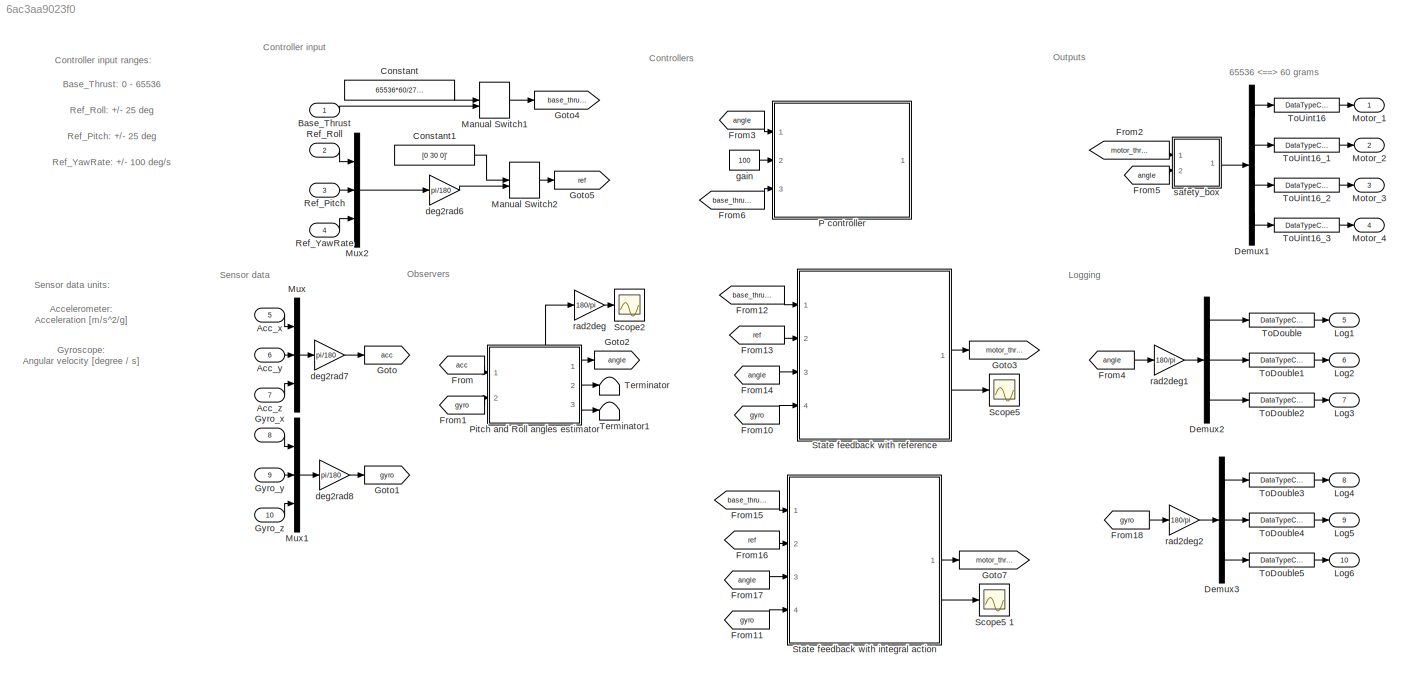
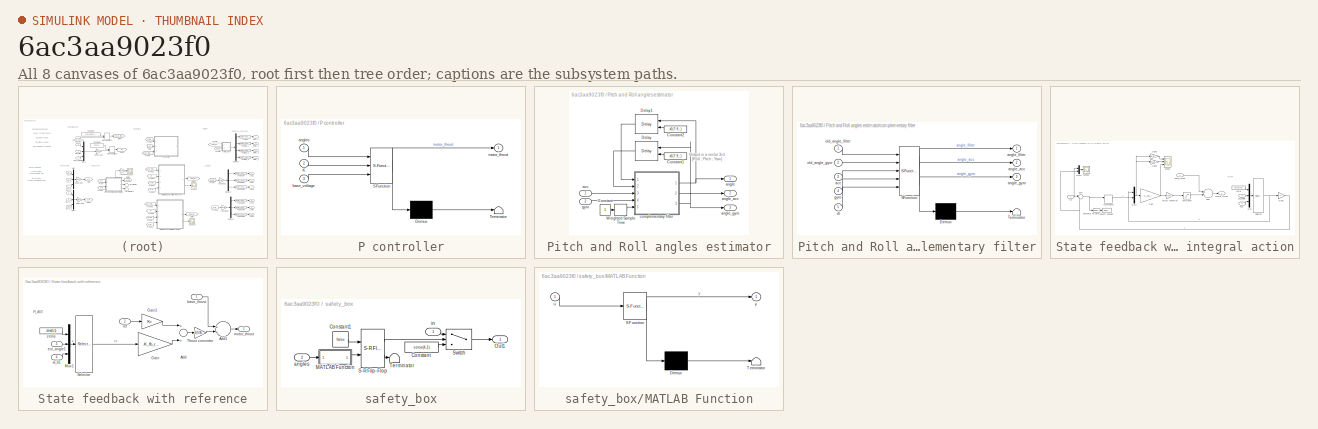
[diagram: thumbnail index - all 8 canvases of the model, root first then tree order]
MODEL slx_6ac3aa9023f0
KIND model
CONFIG AbsTol = auto
CONFIG EnableMultiTasking = off
CONFIG FixedStep = 0.01
CONFIG MaxStep = auto
CONFIG MinStep = auto
CONFIG RelTol = 1e-3
CONFIG SampleTimeConstraint = Unconstrained
CONFIG Solver = FixedStepDiscrete
CONFIG SolverName = FixedStepDiscrete
CONFIG StartTime = 0.0
CONFIG StopTime = 25
BLOCK [Inport] Acc_x
  IconDisplay = Port number
  OutDataTypeStr = double
  Port = 5
  PortDimensions = 1
  SignalType = real
  VarSizeSig = No
BLOCK [Inport] Acc_y
  IconDisplay = Port number
  OutDataTypeStr = double
  Port = 6
  PortDimensions = 1
  SignalType = real
  VarSizeSig = No
BLOCK [Inport] Acc_z
  IconDisplay = Port number
  OutDataTypeStr = double
  Port = 7
  PortDimensions = 1
  SignalType = real
  VarSizeSig = No
BLOCK [Inport] Base_Thrust
  IconDisplay = Port number
  OutDataTypeStr = double
  SignalType = real
BLOCK [Constant] Constant
  Value = 65536*60/27/4*0.4
BLOCK [Constant] Constant1
  Value = [0 30 0]'
BLOCK [Demux] Demux1
  DisplayOption = bar
  Ports = [1, 4]
BLOCK [Demux] Demux2
  DisplayOption = bar
  Outputs = 3
  Ports = [1, 3]
BLOCK [Demux] Demux3
  DisplayOption = bar
  Outputs = 3
  Ports = [1, 3]
BLOCK [From] From
  GotoTag = acc
BLOCK [From] From1
  GotoTag = gyro
BLOCK [From] From10
  Commented = on
  GotoTag = gyro
BLOCK [From] From11
  GotoTag = gyro
BLOCK [From] From12
  Commented = on
  GotoTag = base_thrust
BLOCK [From] From13
  Commented = on
  GotoTag = ref
BLOCK [From] From14
  Commented = on
  GotoTag = angle
BLOCK [From] From15
  GotoTag = base_thrust
BLOCK [From] From16
  GotoTag = ref
BLOCK [From] From17
  GotoTag = angle
BLOCK [From] From18
  GotoTag = gyro
BLOCK [From] From2
  GotoTag = motor_thrust
BLOCK [From] From3
  Commented = on
  GotoTag = angle
BLOCK [From] From4
  GotoTag = angle
BLOCK [From] From5
  GotoTag = angle
BLOCK [From] From6
  Commented = on
  GotoTag = base_thrust
BLOCK [Goto] Goto
  GotoTag = acc
BLOCK [Goto] Goto1
  GotoTag = gyro
BLOCK [Goto] Goto2
  GotoTag = angle
BLOCK [Goto] Goto3
  Commented = on
  GotoTag = motor_thrust
BLOCK [Goto] Goto4
  GotoTag = base_thrust
BLOCK [Goto] Goto5
  GotoTag = ref
BLOCK [Goto] Goto7
  GotoTag = motor_thrust
BLOCK [Inport] Gyro_x
  IconDisplay = Port number
  OutDataTypeStr = double
  Port = 8
  PortDimensions = 1
  SignalType = real
  VarSizeSig = No
BLOCK [Inport] Gyro_y
  IconDisplay = Port number
  OutDataTypeStr = double
  Port = 9
  PortDimensions = 1
  SignalType = real
  VarSizeSig = No
BLOCK [Inport] Gyro_z
  IconDisplay = Port number
  OutDataTypeStr = double
  Port = 10
  PortDimensions = 1
  SignalType = real
  VarSizeSig = No
BLOCK [Outport] Log1
  IconDisplay = Port number
  OutDataTypeStr = double
  Port = 5
BLOCK [Outport] Log2
  IconDisplay = Port number
  OutDataTypeStr = double
  Port = 6
BLOCK [Outport] Log3
  IconDisplay = Port number
  OutDataTypeStr = double
  Port = 7
BLOCK [Outport] Log4
  IconDisplay = Port number
  OutDataTypeStr = double
  Port = 8
BLOCK [Outport] Log5
  IconDisplay = Port number
  OutDataTypeStr = double
  Port = 9
BLOCK [Outport] Log6
  IconDisplay = Port number
  OutDataTypeStr = double
  Port = 10
BLOCK [ManualSwitch] Manual Switch1
  CurrentSetting = 0
BLOCK [ManualSwitch] Manual Switch2
  CurrentSetting = 0
BLOCK [Outport] Motor_1
  IconDisplay = Port number
  LockScale = on
  OutDataTypeStr = uint16
BLOCK [Outport] Motor_2
  IconDisplay = Port number
  LockScale = on
  OutDataTypeStr = uint16
  Port = 2
BLOCK [Outport] Motor_3
  IconDisplay = Port number
  LockScale = on
  OutDataTypeStr = uint16
  Port = 3
BLOCK [Outport] Motor_4
  IconDisplay = Port number
  LockScale = on
  OutDataTypeStr = uint16
  Port = 4
BLOCK [Mux] Mux
  DisplayOption = bar
  Inputs = 3
  Ports = [3, 1]
BLOCK [Mux] Mux1
  DisplayOption = bar
  Inputs = 3
  Ports = [3, 1]
BLOCK [Mux] Mux2
  DisplayOption = bar
  Inputs = 3
  Ports = [3, 1]
BLOCK [SubSystem] P controller
  Commented = on
  ErrorFcn = Stateflow.Translate.translate
  PermitHierarchicalResolution = ExplicitOnly
  Ports = [3, 1]
  RequestExecContextInheritance = off
  SFBlockType = MATLAB Function
  TreatAsAtomicUnit = on
BLOCK [Demux] P controller/ Demux 
  Outputs = 1
  Ports = [1, 1]
BLOCK [S-Function] P controller/ SFunction 
  EnableBusSupport = on
  FunctionName = sf_sfun
  PortCounts = [3 2]
  Ports = [3, 2]
  SFcnIsStateOwnerBlock = off
  SFunctionDeploymentMode = off
  Tag = Stateflow S-Function crazyflie 1
BLOCK [Terminator] P controller/ Terminator 
BLOCK [Inport] P controller/K
  IconDisplay = Port number
  Port = 2
BLOCK [Inport] P controller/angles
  IconDisplay = Port number
BLOCK [Inport] P controller/base_voltage
  IconDisplay = Port number
  Port = 3
BLOCK [Outport] P controller/motor_thrust
  IconDisplay = Port number
BLOCK [SubSystem] Pitch and Roll angles estimator
  Ports = [2, 3]
  RequestExecContextInheritance = off
BLOCK [Constant] Pitch and Roll angles estimator/Constant
BLOCK [Constant] Pitch and Roll angles estimator/Constant1
  Value = x0(7:9,:)
BLOCK [Constant] Pitch and Roll angles estimator/Constant2
  Value = x0(7:9,:)
BLOCK [Delay] Pitch and Roll angles estimator/Delay
  DelayLength = 1
  InitialCondition = rad2deg(x0(7:9,:))
  InitialConditionSource = Input port
  InputPortMap = u0,p4
  Ports = [2, 1]
BLOCK [Delay] Pitch and Roll angles estimator/Delay1
  DelayLength = 1
  InitialCondition = rad2deg(x0(7:9,:))
  InitialConditionSource = Input port
  InputPortMap = u0,p4
  Ports = [2, 1]
BLOCK [SampleTimeMath] Pitch and Roll angles estimator/Weighted Sample Time
  TsampMathOp = Ts Only
BLOCK [Inport] Pitch and Roll angles estimator/acc
  IconDisplay = Port number
BLOCK [Outport] Pitch and Roll angles estimator/angle
  IconDisplay = Port number
BLOCK [Outport] Pitch and Roll angles estimator/angle_acc
  IconDisplay = Port number
  Port = 2
BLOCK [Outport] Pitch and Roll angles estimator/angle_gyro
  IconDisplay = Port number
  Port = 3
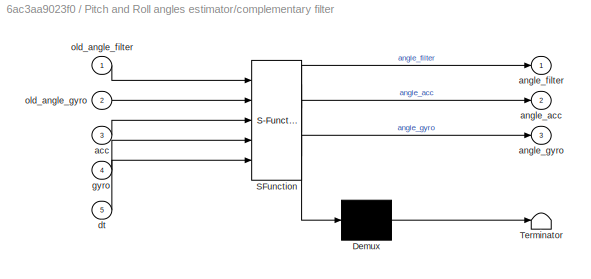
BLOCK [SubSystem] Pitch and Roll angles estimator/complementary filter
  ErrorFcn = Stateflow.Translate.translate
  PermitHierarchicalResolution = ExplicitOnly
  Ports = [5, 3]
  RequestExecContextInheritance = off
  SFBlockType = MATLAB Function
  TreatAsAtomicUnit = on
BLOCK [Demux] Pitch and Roll angles estimator/complementary filter/ Demux 
  Outputs = 1
  Ports = [1, 1]
BLOCK [S-Function] Pitch and Roll angles estimator/complementary filter/ SFunction 
  EnableBusSupport = on
  FunctionName = sf_sfun
  PortCounts = [5 4]
  Ports = [5, 4]
  SFcnIsStateOwnerBlock = off
  SFunctionDeploymentMode = off
  Tag = Stateflow S-Function crazyflie 2
BLOCK [Terminator] Pitch and Roll angles estimator/complementary filter/ Terminator 
BLOCK [Inport] Pitch and Roll angles estimator/complementary filter/acc
  IconDisplay = Port number
  Port = 3
BLOCK [Outport] Pitch and Roll angles estimator/complementary filter/angle_acc
  IconDisplay = Port number
  Port = 2
BLOCK [Outport] Pitch and Roll angles estimator/complementary filter/angle_filter
  IconDisplay = Port number
BLOCK [Outport] Pitch and Roll angles estimator/complementary filter/angle_gyro
  IconDisplay = Port number
  Port = 3
BLOCK [Inport] Pitch and Roll angles estimator/complementary filter/dt
  IconDisplay = Port number
  Port = 5
BLOCK [Inport] Pitch and Roll angles estimator/complementary filter/gyro
  IconDisplay = Port number
  Port = 4
BLOCK [Inport] Pitch and Roll angles estimator/complementary filter/old_angle_filter
  IconDisplay = Port number
BLOCK [Inport] Pitch and Roll angles estimator/complementary filter/old_angle_gyro
  IconDisplay = Port number
  Port = 2
BLOCK [Inport] Pitch and Roll angles estimator/gyro
  IconDisplay = Port number
  Port = 2
BLOCK [Inport] Ref_Pitch
  IconDisplay = Port number
  OutDataTypeStr = double
  Port = 3
BLOCK [Inport] Ref_Roll
  IconDisplay = Port number
  OutDataTypeStr = double
  Port = 2
BLOCK [Inport] Ref_YawRate
  IconDisplay = Port number
  OutDataTypeStr = double
  Port = 4
BLOCK [Scope] Scope2
  Floating = off
  NumInputPorts = 1
  Ports = [1]
  ScopeSpecificationString = Simulink.scopes.TimeScopeBlockCfg('CurrentConfiguration', extmgr.ConfigurationSet(extmgr.Configuration('Core','General UI',true),extmgr.Configuration('Core','Source UI',true),extmgr.Configuration('Sources','WiredSimulink',true,'DataLoggingVariableName','ScopeData1'),extmgr.Configuration('Visuals','Time Domain',true,'SerializedDisplays',{struct('MinYLimReal','-3.39483','MaxYLimReal','22.59072','YLa...<+1607ch>
BLOCK [Scope] Scope5 
  Commented = on
  Floating = off
  NumInputPorts = 1
  Ports = [1]
  ScopeSpecificationString = Simulink.scopes.TimeScopeBlockCfg('CurrentConfiguration', extmgr.ConfigurationSet(extmgr.Configuration('Core','General UI',true),extmgr.Configuration('Core','Source UI',true),extmgr.Configuration('Sources','WiredSimulink',true,'DataLoggingVariableName','ScopeData2'),extmgr.Configuration('Visuals','Time Domain',true,'SerializedDisplays',{struct('MinYLimReal','-0.97016','MaxYLimReal','0.97016','YLab...<+1566ch>
BLOCK [Scope] Scope5 1
  Floating = off
  NumInputPorts = 1
  Ports = [1]
  ScopeSpecificationString = Simulink.scopes.TimeScopeBlockCfg('CurrentConfiguration', extmgr.ConfigurationSet(extmgr.Configuration('Core','General UI',true),extmgr.Configuration('Core','Source UI',true),extmgr.Configuration('Sources','WiredSimulink',true),extmgr.Configuration('Visuals','Time Domain',true,'SerializedDisplays',{struct('MinYLimReal','-2769955.59689','MaxYLimReal','2786019.95539','YLabelReal','','MinYLimMag','  ...<+1597ch>
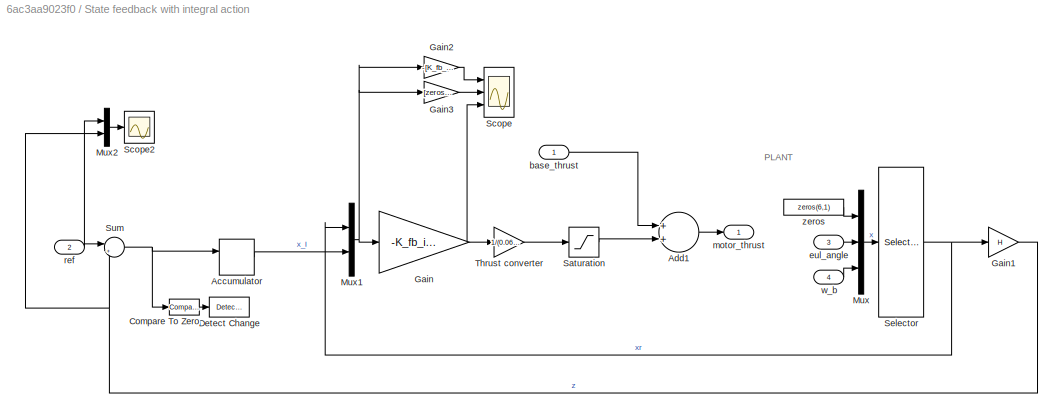
BLOCK [SubSystem] State feedback with integral action
  Ports = [4, 1]
  RequestExecContextInheritance = off
BLOCK [DiscreteIntegrator] State feedback with integral action/Accumulator
  ExternalReset = either
  ICPrevOutput = DiscIntNeverNeededParam
  ICPrevScaledInput = DiscIntNeverNeededParam
  InitialConditionSetting = Auto
  IntegratorMethod = Accumulation: Forward Euler
  Ports = [2, 1]
  SampleTime = -1
BLOCK [Sum] State feedback with integral action/Add1
  InputSameDT = off
  OutDataTypeStr = Inherit: Inherit via internal rule
  Ports = [2, 1]
  SaturateOnIntegerOverflow = off
BLOCK [Reference] State feedback with integral action/Compare To Zero  REF=simulink/Logic and Bit
Operations/Compare
To Zero
  Ports = [1, 1]
  SourceBlock = simulink/Logic and Bit\nOperations/Compare\nTo Zero
  SourceProductBaseCode = SL
  SourceProductName = Simulink
  SourceType = Compare To Zero
BLOCK [Reference] State feedback with integral action/Detect Change  REF=simulink/Logic and Bit
Operations/Detect
Change
  Ports = [1, 1]
  SourceBlock = simulink/Logic and Bit\nOperations/Detect\nChange
  SourceProductBaseCode = SL
  SourceProductName = Simulink
  SourceType = Detect Change
BLOCK [Gain] State feedback with integral action/Gain
  Gain = -K_fb_int
  Multiplication = Matrix(K*u)
  OutDataTypeStr = Inherit: Inherit via internal rule
  ParamDataTypeStr = Inherit: Inherit via internal rule
  SaturateOnIntegerOverflow = off
BLOCK [Gain] State feedback with integral action/Gain1
  Gain = H
  Multiplication = Matrix(K*u)
  OutDataTypeStr = Inherit: Inherit via internal rule
  ParamDataTypeStr = Inherit: Inherit via internal rule
  SaturateOnIntegerOverflow = off
BLOCK [Gain] State feedback with integral action/Gain2
  Gain = -[K_fb_int(:,1:5) zeros(4,3)]
  Multiplication = Matrix(K*u)
  OutDataTypeStr = Inherit: Inherit via internal rule
  ParamDataTypeStr = Inherit: Inherit via internal rule
  SaturateOnIntegerOverflow = off
BLOCK [Gain] State feedback with integral action/Gain3
  Gain = [zeros(4,5) -K_fb_int(:,6:8)]
  Multiplication = Matrix(K*u)
  OutDataTypeStr = Inherit: Inherit via internal rule
  ParamDataTypeStr = Inherit: Inherit via internal rule
  SaturateOnIntegerOverflow = off
BLOCK [Mux] State feedback with integral action/Mux
  DisplayOption = bar
  Inputs = 3
  Ports = [3, 1]
BLOCK [Mux] State feedback with integral action/Mux1
  DisplayOption = bar
  Inputs = 2
  Ports = [2, 1]
BLOCK [Mux] State feedback with integral action/Mux2
  DisplayOption = bar
  Inputs = 2
  Ports = [2, 1]
BLOCK [Saturate] State feedback with integral action/Saturation
  InputPortMap = u0
  LowerLimit = 0
  Ports = [1, 1]
  UpperLimit = Inf
BLOCK [Scope] State feedback with integral action/Scope
  Floating = off
  NumInputPorts = 3
  Ports = [3]
  ScopeSpecificationString = Simulink.scopes.TimeScopeBlockCfg('CurrentConfiguration', extmgr.ConfigurationSet(extmgr.Configuration('Core','General UI',true),extmgr.Configuration('Core','Source UI',true),extmgr.Configuration('Sources','WiredSimulink',true,'DataLoggingVariableName','ScopeData1'),extmgr.Configuration('Visuals','Time Domain',true,'SerializedDisplays',{struct('MinYLimReal','-0.14002','MaxYLimReal','0.14002','YLab...<+2806ch>
BLOCK [Scope] State feedback with integral action/Scope2
  Floating = off
  NumInputPorts = 1
  Ports = [1]
  ScopeSpecificationString = Simulink.scopes.TimeScopeBlockCfg('CurrentConfiguration', extmgr.ConfigurationSet(extmgr.Configuration('Core','General UI',true),extmgr.Configuration('Core','Source UI',true),extmgr.Configuration('Sources','WiredSimulink',true,'DataLoggingVariableName','ScopeData3'),extmgr.Configuration('Visuals','Time Domain',true,'SerializedDisplays',{struct('MinYLimReal','-0.04885','MaxYLimReal','0.02307','YLab...<+1606ch>
BLOCK [Selector] State feedback with integral action/Selector
  IndexOptions = Index vector (dialog)
  Indices = idx
  InputPortWidth = 12
  OutputSizes = 1
  Ports = [1, 1]
BLOCK [Sum] State feedback with integral action/Sum
  IconShape = round
  InputSameDT = off
  Inputs = |+-
  OutDataTypeStr = Inherit: Inherit via internal rule
  Ports = [2, 1]
  SaturateOnIntegerOverflow = off
BLOCK [Gain] State feedback with integral action/Thrust converter
  Gain = 1/(0.06/4*g/65536)
  OutDataTypeStr = Inherit: Inherit via internal rule
  ParamDataTypeStr = Inherit: Inherit via internal rule
  SaturateOnIntegerOverflow = off
BLOCK [Inport] State feedback with integral action/base_thrust
  IconDisplay = Port number
BLOCK [Inport] State feedback with integral action/eul_angle
  IconDisplay = Port number
  Port = 3
BLOCK [Outport] State feedback with integral action/motor_thrust
  IconDisplay = Port number
BLOCK [Inport] State feedback with integral action/ref
  IconDisplay = Port number
  Port = 2
BLOCK [Inport] State feedback with integral action/w_b
  IconDisplay = Port number
  Port = 4
BLOCK [Constant] State feedback with integral action/zeros
  Value = zeros(6,1)
BLOCK [SubSystem] State feedback with reference
  Commented = on
  Ports = [4, 1]
  RequestExecContextInheritance = off
BLOCK [Sum] State feedback with reference/Add
  InputSameDT = off
  OutDataTypeStr = Inherit: Inherit via internal rule
  Ports = [2, 1]
  SaturateOnIntegerOverflow = off
BLOCK [Sum] State feedback with reference/Add1
  InputSameDT = off
  OutDataTypeStr = Inherit: Inherit via internal rule
  Ports = [2, 1]
  SaturateOnIntegerOverflow = off
BLOCK [Gain] State feedback with reference/Gain
  Gain = -K_fb_ref
  Multiplication = Matrix(K*u)
  OutDataTypeStr = Inherit: Inherit via internal rule
  ParamDataTypeStr = Inherit: Inherit via internal rule
  SaturateOnIntegerOverflow = off
BLOCK [Gain] State feedback with reference/Gain1
  Gain = Kr
  Multiplication = Matrix(K*u)
  OutDataTypeStr = Inherit: Inherit via internal rule
  ParamDataTypeStr = Inherit: Inherit via internal rule
  SaturateOnIntegerOverflow = off
BLOCK [Mux] State feedback with reference/Mux1
  DisplayOption = bar
  Inputs = 3
  Ports = [3, 1]
BLOCK [Selector] State feedback with reference/Selector
  IndexOptions = Index vector (dialog)
  Indices = idx
  InputPortWidth = 12
  OutputSizes = 1
  Ports = [1, 1]
BLOCK [Gain] State feedback with reference/Thrust converter
  Gain = 1/(0.06/4*g/65536)
  OutDataTypeStr = Inherit: Inherit via internal rule
  ParamDataTypeStr = Inherit: Inherit via internal rule
  SaturateOnIntegerOverflow = off
BLOCK [Inport] State feedback with reference/base_thrust
  IconDisplay = Port number
BLOCK [Inport] State feedback with reference/eul_angle1
  IconDisplay = Port number
  Port = 3
BLOCK [Outport] State feedback with reference/motor_thrust
  IconDisplay = Port number
BLOCK [Inport] State feedback with reference/ref
  IconDisplay = Port number
  Port = 2
BLOCK [Inport] State feedback with reference/w_b1
  IconDisplay = Port number
  Port = 4
BLOCK [Constant] State feedback with reference/zeros
  Value = zeros(6,1)
BLOCK [Terminator] Terminator
BLOCK [Terminator] Terminator1
BLOCK [DataTypeConversion] ToDouble
  OutDataTypeStr = double
  RndMeth = Floor
BLOCK [DataTypeConversion] ToDouble1
  OutDataTypeStr = double
  RndMeth = Floor
BLOCK [DataTypeConversion] ToDouble2
  OutDataTypeStr = double
  RndMeth = Floor
BLOCK [DataTypeConversion] ToDouble3
  OutDataTypeStr = double
  RndMeth = Floor
BLOCK [DataTypeConversion] ToDouble4
  OutDataTypeStr = double
  RndMeth = Floor
BLOCK [DataTypeConversion] ToDouble5
  OutDataTypeStr = double
  RndMeth = Floor
BLOCK [DataTypeConversion] ToUint16
  OutDataTypeStr = uint16
  RndMeth = Floor
BLOCK [DataTypeConversion] ToUint16_1
  OutDataTypeStr = uint16
  RndMeth = Floor
BLOCK [DataTypeConversion] ToUint16_2
  OutDataTypeStr = uint16
  RndMeth = Floor
BLOCK [DataTypeConversion] ToUint16_3
  OutDataTypeStr = uint16
  RndMeth = Floor
BLOCK [Gain] deg2rad6
  Gain = pi/180
  OutDataTypeStr = Inherit: Inherit via internal rule
  ParamDataTypeStr = Inherit: Inherit via internal rule
  SaturateOnIntegerOverflow = off
BLOCK [Gain] deg2rad7
  Gain = pi/180
  OutDataTypeStr = Inherit: Inherit via internal rule
  ParamDataTypeStr = Inherit: Inherit via internal rule
  SaturateOnIntegerOverflow = off
BLOCK [Gain] deg2rad8
  Gain = pi/180
  OutDataTypeStr = Inherit: Inherit via internal rule
  ParamDataTypeStr = Inherit: Inherit via internal rule
  SaturateOnIntegerOverflow = off
BLOCK [Constant] gain
  Commented = on
  Value = 100
BLOCK [Gain] rad2deg
  Gain = 180/pi
  OutDataTypeStr = Inherit: Inherit via internal rule
  ParamDataTypeStr = Inherit: Inherit via internal rule
  SaturateOnIntegerOverflow = off
BLOCK [Gain] rad2deg1
  Gain = 180/pi
  OutDataTypeStr = Inherit: Inherit via internal rule
  ParamDataTypeStr = Inherit: Inherit via internal rule
  SaturateOnIntegerOverflow = off
BLOCK [Gain] rad2deg2
  Gain = 180/pi
  OutDataTypeStr = Inherit: Inherit via internal rule
  ParamDataTypeStr = Inherit: Inherit via internal rule
  SaturateOnIntegerOverflow = off
BLOCK [SubSystem] safety_box
  Ports = [2, 1]
  RequestExecContextInheritance = off
BLOCK [Constant] safety_box/Constant
  Value = zeros(4,1)
BLOCK [Constant] safety_box/Constant1
  Value = false
BLOCK [SubSystem] safety_box/MATLAB Function
  ErrorFcn = Stateflow.Translate.translate
  PermitHierarchicalResolution = ExplicitOnly
  Ports = [1, 1]
  RequestExecContextInheritance = off
  SFBlockType = MATLAB Function
  TreatAsAtomicUnit = on
BLOCK [Demux] safety_box/MATLAB Function/ Demux 
  Outputs = 1
  Ports = [1, 1]
BLOCK [S-Function] safety_box/MATLAB Function/ SFunction 
  EnableBusSupport = on
  FunctionName = sf_sfun
  PortCounts = [1 2]
  Ports = [1, 2]
  SFcnIsStateOwnerBlock = off
  SFunctionDeploymentMode = off
  Tag = Stateflow S-Function crazyflie 3
BLOCK [Terminator] safety_box/MATLAB Function/ Terminator 
BLOCK [Inport] safety_box/MATLAB Function/u
  IconDisplay = Port number
BLOCK [Outport] safety_box/MATLAB Function/y
  IconDisplay = Port number
BLOCK [Outport] safety_box/Out1
  IconDisplay = Port number
BLOCK [Reference] safety_box/S-R Flip-Flop  REF=simulink_extras/Flip Flops/S-R
Flip-Flop
  Ports = [2, 2]
  SourceBlock = simulink_extras/Flip Flops/S-R\nFlip-Flop
  SourceProductBaseCode = SL
  SourceProductName = Simulink
  SourceType = SRFlipFlop
BLOCK [Switch] safety_box/Switch
  Criteria = u2 > Threshold
  InputSameDT = off
  SaturateOnIntegerOverflow = off
BLOCK [Terminator] safety_box/Terminator
BLOCK [Inport] safety_box/angles
  IconDisplay = Port number
  Port = 2
BLOCK [Inport] safety_box/in
  IconDisplay = Port number
ANNOTATION (root): 65536 60 grams
ANNOTATION (root): Accelerometer: Acceleration [m/s^2/g]
ANNOTATION (root): Base_Thrust: 0 - 65536
ANNOTATION (root): Controller input
ANNOTATION (root): Controller input ranges:
ANNOTATION (root): Controllers
ANNOTATION (root): Gyroscope: Angular velocity [degree / s]
ANNOTATION (root): Logging
ANNOTATION (root): Observers
ANNOTATION (root): Outputs
ANNOTATION (root): Ref_Pitch: +/- 25 deg
ANNOTATION (root): Ref_Roll: +/- 25 deg
ANNOTATION (root): Ref_YawRate: +/- 100 deg/s
ANNOTATION (root): Sensor data
ANNOTATION (root): Sensor data units:
ANNOTATION Pitch and Roll angles estimator: Output is a vector 3x1 [Roll ; Pitch ; Yaw]
ANNOTATION State feedback with integral action: PLANT
ANNOTATION State feedback with reference: PLANT
LINE Acc_x:1 -> Mux:1
LINE Acc_y:1 -> Mux:2
LINE Acc_z:1 -> Mux:3
LINE Base_Thrust:1 -> Manual Switch1:2
LINE Constant1:1 -> Manual Switch2:1
LINE Constant:1 -> Manual Switch1:1
LINE Demux1:1 -> ToUint16:1
LINE Demux1:2 -> ToUint16_1:1
LINE Demux1:3 -> ToUint16_2:1
LINE Demux1:4 -> ToUint16_3:1
LINE Demux2:1 -> ToDouble:1
LINE Demux2:2 -> ToDouble1:1
LINE Demux2:3 -> ToDouble2:1
LINE Demux3:1 -> ToDouble3:1
LINE Demux3:2 -> ToDouble4:1
LINE Demux3:3 -> ToDouble5:1
LINE From10:1 -> State feedback with reference:4
LINE From11:1 -> State feedback with integral action:4
LINE From12:1 -> State feedback with reference:1
LINE From13:1 -> State feedback with reference:2
LINE From14:1 -> State feedback with reference:3
LINE From15:1 -> State feedback with integral action:1
LINE From16:1 -> State feedback with integral action:2
LINE From17:1 -> State feedback with integral action:3
LINE From18:1 -> rad2deg2:1
LINE From1:1 -> Pitch and Roll angles estimator:2
LINE From2:1 -> safety_box:1
LINE From3:1 -> P controller:1
LINE From4:1 -> rad2deg1:1
LINE From5:1 -> safety_box:2
LINE From6:1 -> P controller:3
LINE From:1 -> Pitch and Roll angles estimator:1
LINE Gyro_x:1 -> Mux1:1
LINE Gyro_y:1 -> Mux1:2
LINE Gyro_z:1 -> Mux1:3
LINE Manual Switch1:1 -> Goto4:1
LINE Manual Switch2:1 -> Goto5:1
LINE Mux1:1 -> deg2rad8:1
LINE Mux2:1 -> deg2rad6:1
LINE Mux:1 -> deg2rad7:1
LINE Pitch and Roll angles estimator/Constant1:1 -> Pitch and Roll angles estimator/Delay:2
LINE Pitch and Roll angles estimator/Constant2:1 -> Pitch and Roll angles estimator/Delay1:2
LINE Pitch and Roll angles estimator/Constant:1 -> Pitch and Roll angles estimator/Weighted Sample Time:1
LINE Pitch and Roll angles estimator/Delay1:1 -> Pitch and Roll angles estimator/complementary filter:1
LINE Pitch and Roll angles estimator/Delay:1 -> Pitch and Roll angles estimator/complementary filter:2
LINE Pitch and Roll angles estimator/Weighted Sample Time:1 -> Pitch and Roll angles estimator/complementary filter:5
LINE Pitch and Roll angles estimator/acc:1 -> Pitch and Roll angles estimator/complementary filter:3
NET Pitch and Roll angles estimator/complementary filter:1 -> Pitch and Roll angles estimator/Delay1:1, Pitch and Roll angles estimator/angle:1
LINE Pitch and Roll angles estimator/complementary filter:2 -> Pitch and Roll angles estimator/angle_acc:1
NET Pitch and Roll angles estimator/complementary filter:3 -> Pitch and Roll angles estimator/Delay:1, Pitch and Roll angles estimator/angle_gyro:1
LINE Pitch and Roll angles estimator/gyro:1 -> Pitch and Roll angles estimator/complementary filter:4
NET Pitch and Roll angles estimator:1 -> Goto2:1, rad2deg:1
LINE Pitch and Roll angles estimator:2 -> Terminator:1
LINE Pitch and Roll angles estimator:3 -> Terminator1:1
LINE Ref_Pitch:1 -> Mux2:2
LINE Ref_Roll:1 -> Mux2:1
LINE Ref_YawRate:1 -> Mux2:3
LINE State feedback with integral action/Accumulator:1 -> State feedback with integral action/Mux1:2
LINE State feedback with integral action/Add1:1 -> State feedback with integral action/motor_thrust:1
LINE State feedback with integral action/Compare To Zero:1 -> State feedback with integral action/Detect Change:1
NET State feedback with integral action/Gain1:1 -> State feedback with integral action/Mux2:2, State feedback with integral action/Sum:2
LINE State feedback with integral action/Gain2:1 -> State feedback with integral action/Scope:1
LINE State feedback with integral action/Gain3:1 -> State feedback with integral action/Scope:2
NET State feedback with integral action/Gain:1 -> State feedback with integral action/Scope:3, State feedback with integral action/Thrust converter:1
NET State feedback with integral action/Mux1:1 -> State feedback with integral action/Gain2:1, State feedback with integral action/Gain3:1, State feedback with integral action/Gain:1
LINE State feedback with integral action/Mux2:1 -> State feedback with integral action/Scope2:1
LINE State feedback with integral action/Mux:1 -> State feedback with integral action/Selector:1
LINE State feedback with integral action/Saturation:1 -> State feedback with integral action/Add1:2
NET State feedback with integral action/Selector:1 -> State feedback with integral action/Gain1:1, State feedback with integral action/Mux1:1
NET State feedback with integral action/Sum:1 -> State feedback with integral action/Accumulator:1, State feedback with integral action/Compare To Zero:1
LINE State feedback with integral action/Thrust converter:1 -> State feedback with integral action/Saturation:1
LINE State feedback with integral action/base_thrust:1 -> State feedback with integral action/Add1:1
LINE State feedback with integral action/eul_angle:1 -> State feedback with integral action/Mux:2
NET State feedback with integral action/ref:1 -> State feedback with integral action/Mux2:1, State feedback with integral action/Sum:1
LINE State feedback with integral action/w_b:1 -> State feedback with integral action/Mux:3
LINE State feedback with integral action/zeros:1 -> State feedback with integral action/Mux:1
NET State feedback with integral action:1 -> Goto7:1, Scope5 1:1
LINE State feedback with reference/Add1:1 -> State feedback with reference/motor_thrust:1
LINE State feedback with reference/Add:1 -> State feedback with reference/Thrust converter:1
LINE State feedback with reference/Gain1:1 -> State feedback with reference/Add:1
LINE State feedback with reference/Gain:1 -> State feedback with reference/Add:2
LINE State feedback with reference/Mux1:1 -> State feedback with reference/Selector:1
LINE State feedback with reference/Selector:1 -> State feedback with reference/Gain:1
LINE State feedback with reference/Thrust converter:1 -> State feedback with reference/Add1:2
LINE State feedback with reference/base_thrust:1 -> State feedback with reference/Add1:1
LINE State feedback with reference/eul_angle1:1 -> State feedback with reference/Mux1:2
LINE State feedback with reference/ref:1 -> State feedback with reference/Gain1:1
LINE State feedback with reference/w_b1:1 -> State feedback with reference/Mux1:3
LINE State feedback with reference/zeros:1 -> State feedback with reference/Mux1:1
NET State feedback with reference:1 -> Goto3:1, Scope5 :1
LINE ToDouble1:1 -> Log2:1
LINE ToDouble2:1 -> Log3:1
LINE ToDouble3:1 -> Log4:1
LINE ToDouble4:1 -> Log5:1
LINE ToDouble5:1 -> Log6:1
LINE ToDouble:1 -> Log1:1
LINE ToUint16:1 -> Motor_1:1
LINE ToUint16_1:1 -> Motor_2:1
LINE ToUint16_2:1 -> Motor_3:1
LINE ToUint16_3:1 -> Motor_4:1
LINE deg2rad6:1 -> Manual Switch2:2
LINE deg2rad7:1 -> Goto:1
LINE deg2rad8:1 -> Goto1:1
LINE gain:1 -> P controller:2
LINE rad2deg1:1 -> Demux2:1
LINE rad2deg2:1 -> Demux3:1
LINE rad2deg:1 -> Scope2:1
LINE safety_box/Constant1:1 -> safety_box/S-R Flip-Flop:1
LINE safety_box/Constant:1 -> safety_box/Switch:3
LINE safety_box/MATLAB Function:1 -> safety_box/S-R Flip-Flop:2
LINE safety_box/S-R Flip-Flop:1 -> safety_box/Switch:2
LINE safety_box/S-R Flip-Flop:2 -> safety_box/Terminator:1
LINE safety_box/Switch:1 -> safety_box/Out1:1
LINE safety_box/angles:1 -> safety_box/MATLAB Function:1
LINE safety_box/in:1 -> safety_box/Switch:1
LINE safety_box:1 -> Demux1:1
note: NET lines group one-source signal fan-out (src -> all destinations, sorted); 1:1 wires keep LINE
CHART P controller states=1 transitions=1
  STATE_LABEL 'eML_blk_kernel()'
  STATE_LABEL 'SCRIPT:\nfunction motor_thrust  = P_controller(angles, K, base_voltage)\n\n    % initiliaze output\n    motor_thrust = zeros(4,1);\n\n    roll_thrust  = K*angles(1);\n    pitch_thrust = K*angles(2);\n    \n    motor_thrust(1) =   roll_thrust + pitch_thrust ;\n    motor_thrust(2) =   roll_thrust - pitch_thrust ;\n    motor_thrust(3) = - roll_thrust - pitch_thrust ;\n    motor_thrust(4) = - roll_thrust + pitch_...<+122ch>'
CHART Pitch and Roll angles
estimator/complementary filter states=1 transitions=1
  STATE_LABEL 'eML_blk_kernel()'
  STATE_LABEL 'SCRIPT:\nfunction [angle_filter, angle_acc, angle_gyro] = comp_filter(old_angle_filter, old_angle_gyro, acc, gyro, dt)\n\n    % initialize output\n    angle_filter = zeros(3,1);\n\n    %%  tunning parameters\n    \n    alpha = 0.05;\n    gamma = alpha / ( dt + alpha );\n%     gamma = 0;\n    \n    %% Acceleration observer\n    \n    % normalize acceleration measurements\n    if norm(acc) ~= 0\n        acc = acc /...<+1174ch>'
CHART safety_box/MATLAB Function states=1 transitions=1
  STATE_LABEL 'eML_blk_kernel()'
  STATE_LABEL 'SCRIPT:\nfunction y = fcn(u)\n\ny = abs(u(1)) > deg2rad(60) || abs(u(2)) > deg2rad(60);\n'
